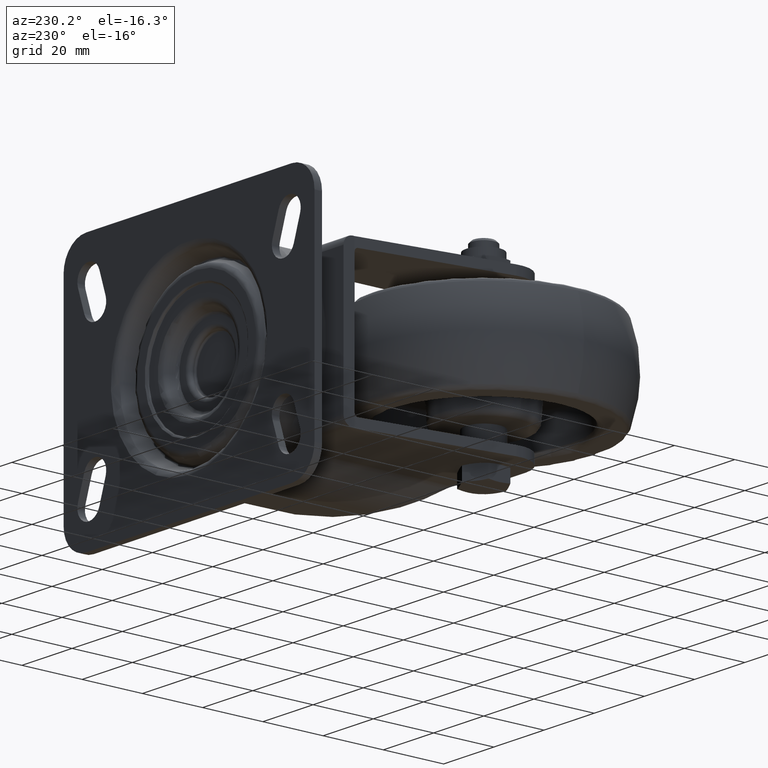
[diagram: clean part render]
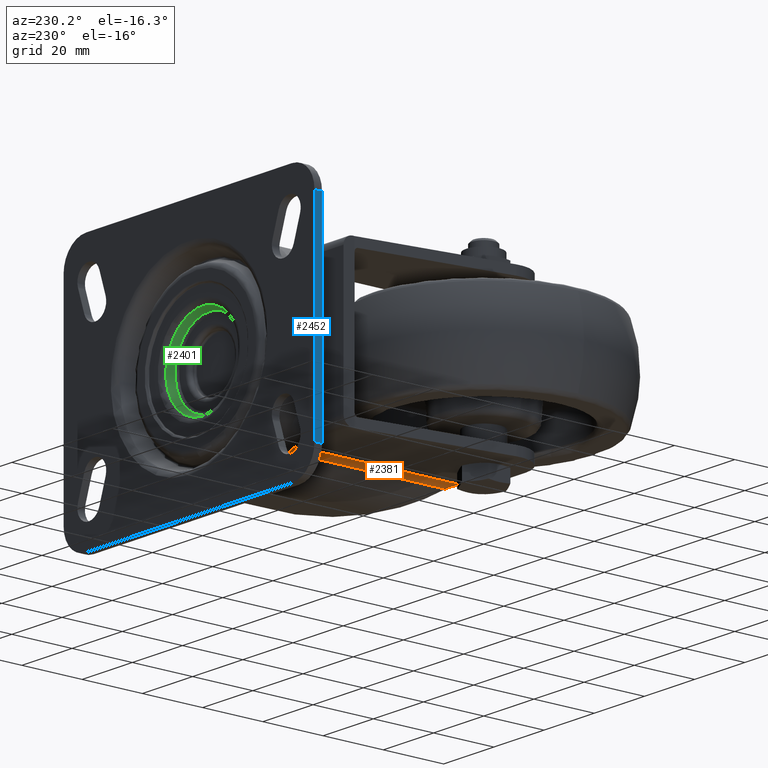
[diagram: same view with three faces highlighted in distinct colors, each labeled with its STEP entity id]
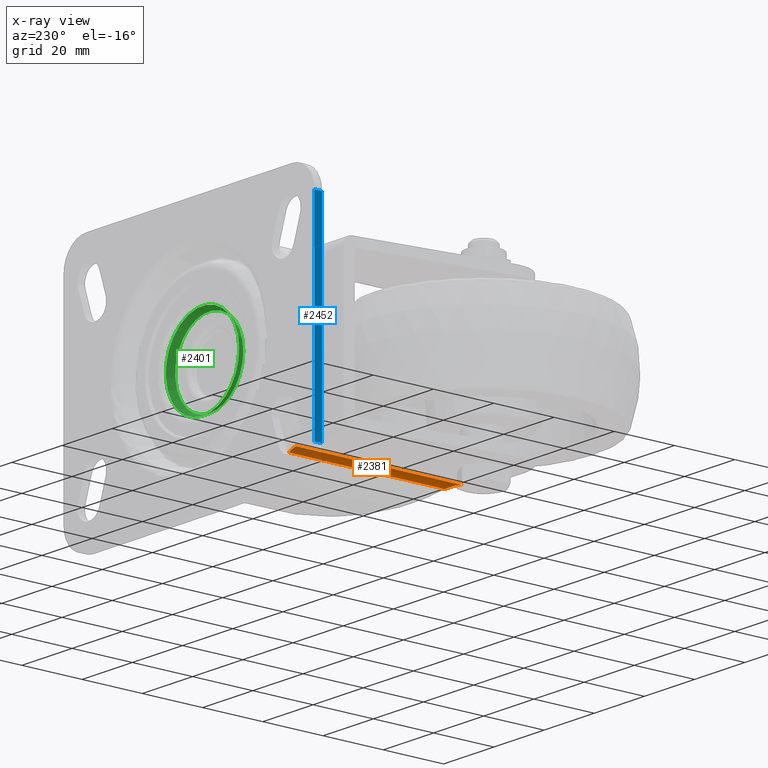
[diagram: x-ray of the same camera — body ghosted, the three highlighted faces saturated]
A machine part, auxiliary view with three faces highlighted in distinct colors.
The next image is the same camera in x-ray (body ghosted, the three faces saturated) — at least one of them is partly hidden behind the body in this view.
Their STEP definitions:

[orange] entity #2381 — the highlighted cylindrical surface (edge-blend (fillet) strip) has radius 5 mm, axis along (0.0002, 1, 0).
#114=ELLIPSE('',#2568,6.97121953067628,5.);
#121=CYLINDRICAL_SURFACE('',#2566,5.);
#187=FACE_OUTER_BOUND('',#335,.T.);
#335=EDGE_LOOP('',(#1526,#1527,#1528,#1529));
#517=CIRCLE('',#2567,5.);
#666=LINE('',#3614,#794);
#690=LINE('',#3696,#818);
#794=VECTOR('',#2862,10.);
#818=VECTOR('',#2926,10.);
#922=VERTEX_POINT('',#3612);
#923=VERTEX_POINT('',#3613);
#960=VERTEX_POINT('',#3693);
#961=VERTEX_POINT('',#3695);
#1142=EDGE_CURVE('',#922,#923,#666,.T.);
#1181=EDGE_CURVE('',#923,#960,#517,.T.);
#1182=EDGE_CURVE('',#960,#961,#690,.T.);
#1183=EDGE_CURVE('',#961,#922,#114,.T.);
#1526=ORIENTED_EDGE('',*,*,#1181,.T.);
#1527=ORIENTED_EDGE('',*,*,#1182,.T.);
#1528=ORIENTED_EDGE('',*,*,#1183,.T.);
#1529=ORIENTED_EDGE('',*,*,#1142,.T.);
#2381=ADVANCED_FACE('',(#187),#121,.F.);
#2566=AXIS2_PLACEMENT_3D('',#3692,#2922,#2923);
#2567=AXIS2_PLACEMENT_3D('',#3694,#2924,#2925);
#2568=AXIS2_PLACEMENT_3D('',#3697,#2927,#2928);
#2862=DIRECTION('',(0.000215816311518736,0.99999997671166,0.));
#2922=DIRECTION('center_axis',(0.000215816311518736,0.99999997671166,0.));
#2923=DIRECTION('ref_axis',(0.314140423902962,-6.77966291645405E-5,0.949376526713023));
#2924=DIRECTION('center_axis',(0.000215816311518736,0.99999997671166,0.));
#2925=DIRECTION('ref_axis',(0.,0.,1.));
#2926=DIRECTION('',(-0.000215816311518736,-0.99999997671166,0.));
#2927=DIRECTION('center_axis',(0.696676950173111,-0.717384992244396,0.));
#2928=DIRECTION('ref_axis',(0.717384992244396,0.696676950173111,0.));
#3612=CARTESIAN_POINT('',(14.332956764793,-4.58563907687502,-25.5));
#3613=CARTESIAN_POINT('',(14.3447797317381,50.1969053315514,-25.5));
#3614=CARTESIAN_POINT('',(14.3389095280648,22.9969059649942,-25.5));
#3692=CARTESIAN_POINT('Origin',(14.3389095280648,22.9969059649942,-30.5));
#3693=CARTESIAN_POINT('',(17.3271551771897,50.1962616862682,-26.4868421052632));
#3694=CARTESIAN_POINT('Origin',(14.3447797317381,50.1969053315514,-30.5));
#3695=CARTESIAN_POINT('',(17.3159575460279,-1.68874562482087,-26.4868421052632));
#3696=CARTESIAN_POINT('',(17.3212849735163,22.996262319711,-26.4868421052632));
#3697=CARTESIAN_POINT('Origin',(14.332956764793,-4.58563907687502,-30.5));

[blue] entity #2452 — the highlighted planar face has unit normal (-1, 0.0002, 0).
#258=FACE_OUTER_BOUND('',#412,.T.);
#412=EDGE_LOOP('',(#1840,#1841,#1842,#1843));
#753=LINE('',#4237,#881);
#765=LINE('',#4272,#893);
#766=LINE('',#4275,#894);
#767=LINE('',#4276,#895);
#881=VECTOR('',#3263,2.5);
#893=VECTOR('',#3297,2.5);
#894=VECTOR('',#3302,67.);
#895=VECTOR('',#3303,67.);
#1048=VERTEX_POINT('',#4230);
#1051=VERTEX_POINT('',#4235);
#1062=VERTEX_POINT('',#4269);
#1063=VERTEX_POINT('',#4271);
#1332=EDGE_CURVE('',#1051,#1048,#753,.T.);
#1349=EDGE_CURVE('',#1063,#1062,#765,.T.);
#1351=EDGE_CURVE('',#1062,#1048,#766,.T.);
#1352=EDGE_CURVE('',#1063,#1051,#767,.T.);
#1840=ORIENTED_EDGE('',*,*,#1351,.T.);
#1841=ORIENTED_EDGE('',*,*,#1332,.F.);
#1842=ORIENTED_EDGE('',*,*,#1352,.F.);
#1843=ORIENTED_EDGE('',*,*,#1349,.T.);
#2204=PLANE('',#2717);
#2452=ADVANCED_FACE('',(#258),#2204,.T.);
#2717=AXIS2_PLACEMENT_3D('',#4274,#3300,#3301);
#3263=DIRECTION('',(-0.000215816311518736,-0.99999997671166,0.));
#3297=DIRECTION('',(-0.000215816311518736,-0.99999997671166,0.));
#3300=DIRECTION('center_axis',(-0.99999997671166,0.000215816311518736,0.));
#3301=DIRECTION('ref_axis',(0.,0.,1.));
#3302=DIRECTION('',(0.,0.,1.));
#3303=DIRECTION('',(0.,0.,1.));
#4230=CARTESIAN_POINT('',(-12.9860795451586,64.5028041099518,33.5));
#4235=CARTESIAN_POINT('',(-12.9855400043798,67.0028040517309,33.5));
#4237=CARTESIAN_POINT('',(-12.9855400043798,67.0028040517309,33.5));
#4269=CARTESIAN_POINT('',(-12.9860795451586,64.5028041099518,-33.5));
#4271=CARTESIAN_POINT('',(-12.9855400043798,67.0028040517309,-33.5));
#4272=CARTESIAN_POINT('',(-12.9855400043798,67.0028040517309,-33.5));
#4274=CARTESIAN_POINT('Origin',(-12.9855400043798,67.0028040517309,-33.5));
#4275=CARTESIAN_POINT('',(-12.9860795451586,64.5028041099518,-33.5));
#4276=CARTESIAN_POINT('',(-12.9855400043798,67.0028040517309,-33.5));

[green] entity #2401 — the highlighted conical surface has half-angle 25 deg.
#51=CONICAL_SURFACE('',#2612,14.1077659205754,0.436332312998583);
#207=FACE_OUTER_BOUND('',#357,.T.);
#357=EDGE_LOOP('',(#1621,#1622,#1623,#1624,#1625,#1626));
#540=CIRCLE('',#2610,13.5790068936092);
#541=CIRCLE('',#2611,13.5790068936092);
#542=CIRCLE('',#2613,14.6365249475417);
#543=CIRCLE('',#2614,14.6365249475417);
#705=LINE('',#4039,#833);
#833=VECTOR('',#3031,14.1077659205754);
#991=VERTEX_POINT('',#4032);
#992=VERTEX_POINT('',#4034);
#993=VERTEX_POINT('',#4038);
#994=VERTEX_POINT('',#4040);
#1234=EDGE_CURVE('',#991,#992,#540,.T.);
#1235=EDGE_CURVE('',#992,#991,#541,.T.);
#1236=EDGE_CURVE('',#992,#993,#705,.T.);
#1237=EDGE_CURVE('',#993,#994,#542,.T.);
#1238=EDGE_CURVE('',#994,#993,#543,.T.);
#1621=ORIENTED_EDGE('',*,*,#1235,.F.);
#1622=ORIENTED_EDGE('',*,*,#1236,.T.);
#1623=ORIENTED_EDGE('',*,*,#1237,.T.);
#1624=ORIENTED_EDGE('',*,*,#1238,.T.);
#1625=ORIENTED_EDGE('',*,*,#1236,.F.);
#1626=ORIENTED_EDGE('',*,*,#1234,.F.);
#2401=ADVANCED_FACE('',(#207),#51,.F.);
#2610=AXIS2_PLACEMENT_3D('',#4035,#3025,#3026);
#2611=AXIS2_PLACEMENT_3D('',#4036,#3027,#3028);
#2612=AXIS2_PLACEMENT_3D('',#4037,#3029,#3030);
#2613=AXIS2_PLACEMENT_3D('',#4041,#3032,#3033);
#2614=AXIS2_PLACEMENT_3D('',#4042,#3034,#3035);
#3025=DIRECTION('center_axis',(0.000215816311518736,0.99999997671166,0.));
#3026=DIRECTION('ref_axis',(0.99999997671166,-0.000215816311518736,0.));
#3027=DIRECTION('center_axis',(0.000215816311518736,0.99999997671166,0.));
#3028=DIRECTION('ref_axis',(0.99999997671166,-0.000215816311518736,0.));
#3029=DIRECTION('center_axis',(0.000215816311518736,0.99999997671166,0.));
#3030=DIRECTION('ref_axis',(0.99999997671166,-0.000215816311518736,0.));
#3031=DIRECTION('',(-0.422422655894923,0.906398973844675,5.17558101501966E-17));
#3032=DIRECTION('center_axis',(0.000215816311518736,0.99999997671166,0.));
#3033=DIRECTION('ref_axis',(0.99999997671166,-0.000215816311518736,0.));
#3034=DIRECTION('center_axis',(0.000215816311518736,0.99999997671166,0.));
#3035=DIRECTION('ref_axis',(0.99999997671166,-0.000215816311518736,0.));
#4032=CARTESIAN_POINT('',(37.0130079805262,60.2693951309729,-13.5790068936092));
#4034=CARTESIAN_POINT('',(23.4340014031495,60.2723257021548,1.66289381205082E-15));
#4035=CARTESIAN_POINT('Origin',(37.0130079805262,60.2693951309729,0.));
#4036=CARTESIAN_POINT('Origin',(37.0130079805262,60.2693951309729,0.));
#4037=CARTESIAN_POINT('Origin',(37.0132527005536,61.4033224971767,0.));
#4038=CARTESIAN_POINT('',(22.3769728138997,62.5404086642081,1.79245734276473E-15));
#4039=CARTESIAN_POINT('',(22.9054871085246,61.4063671831815,1.72770303777528E-15));
#4040=CARTESIAN_POINT('',(37.013497420581,62.5372498633805,-14.6365249475417));
#4041=CARTESIAN_POINT('Origin',(37.013497420581,62.5372498633805,0.));
#4042=CARTESIAN_POINT('Origin',(37.013497420581,62.5372498633805,0.));